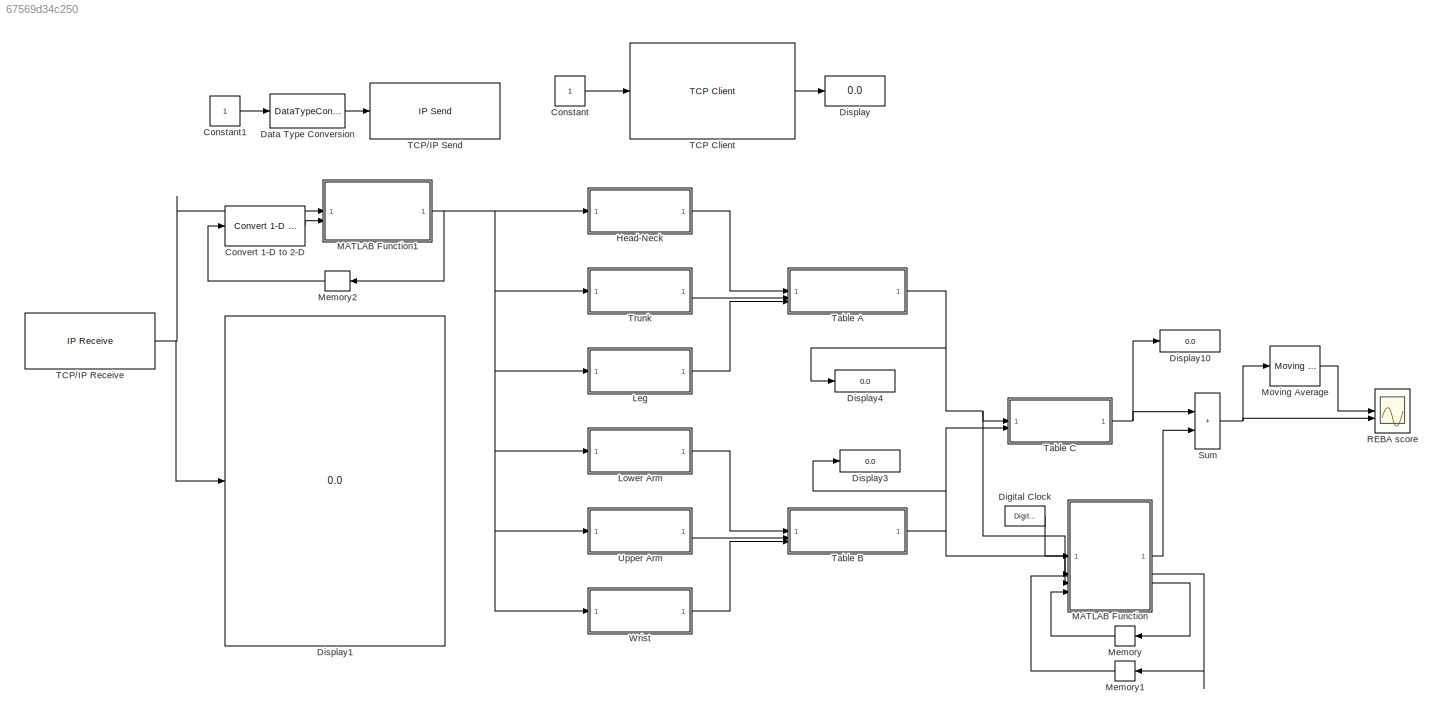
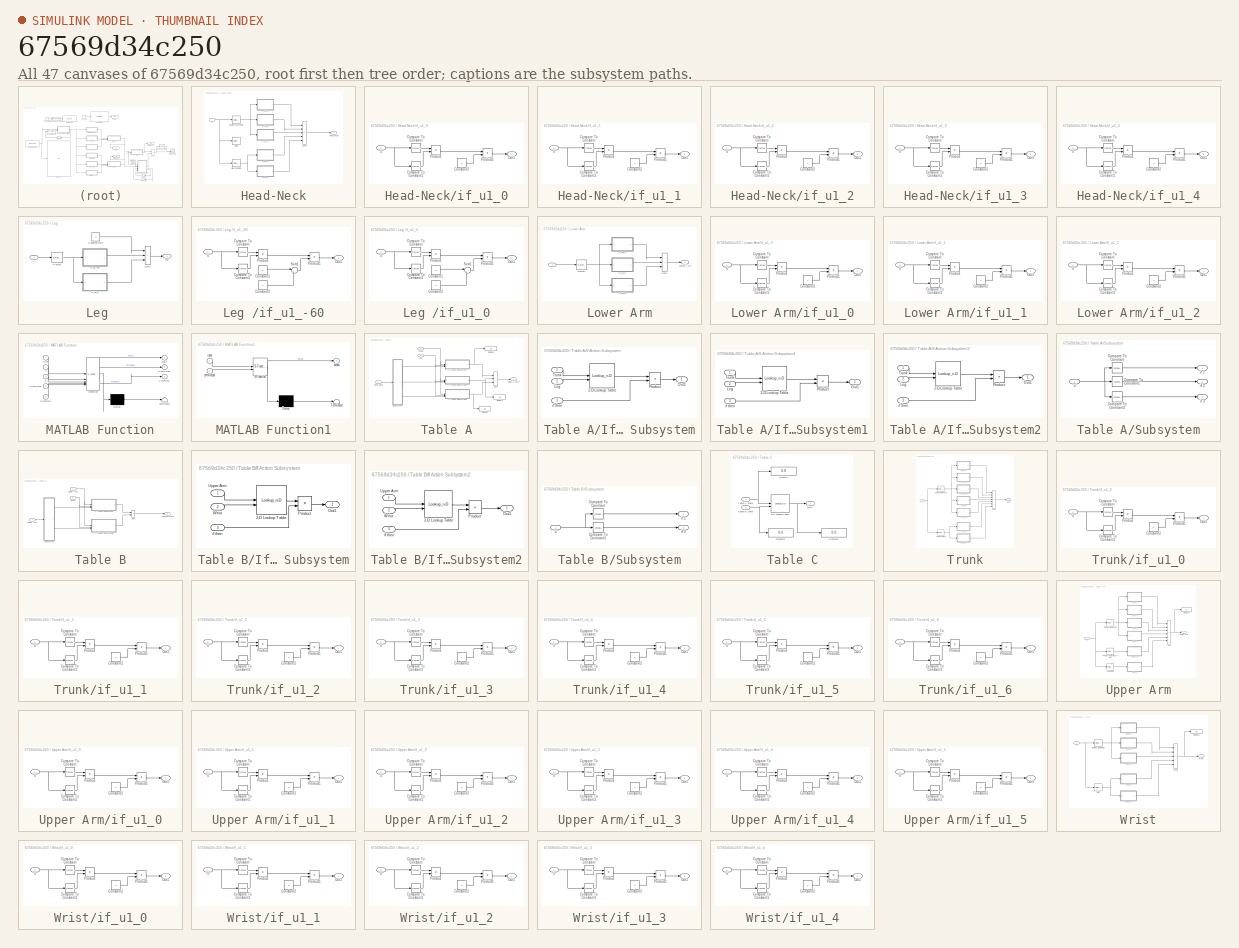
[diagram: thumbnail index - all 47 canvases of the model, root first then tree order]
MODEL slx_67569d34c250
KIND model
CONFIG AbsTol = auto
CONFIG EnableMultiTasking = off
CONFIG FixedStep = 1
CONFIG MaxStep = auto
CONFIG MinStep = auto
CONFIG RelTol = 1e-3
CONFIG SampleTimeConstraint = Unconstrained
CONFIG SolverName = FixedStepAuto
CONFIG StartTime = 0.0
CONFIG StopTime = 90
BLOCK [Constant] Constant
BLOCK [Constant] Constant1
BLOCK [Reference] Convert 1-D to 2-D  REF=dspsigattribs/Convert 1-D to 2-D
  LibrarySourceBlock = dsphdlsupportsigmgmt/Convert 1-D to 2-D
  SourceBlock = dspsigattribs/Convert 1-D to 2-D
  SourceType = Convert 1-D to 2-D
BLOCK [DataTypeConversion] Data Type Conversion
  OutDataTypeStr = uint8
  RndMeth = Floor
  SaturateOnIntegerOverflow = off
BLOCK [DigitalClock] Digital Clock
  Commented = on
BLOCK [Display] Display
  Decimation = 1
BLOCK [Display] Display1
  Decimation = 1
BLOCK [Display] Display10
  Decimation = 1
BLOCK [Display] Display3
  Decimation = 1
BLOCK [Display] Display4
  Decimation = 1
BLOCK [SubSystem] Head-Neck
  TreatAsAtomicUnit = on
BLOCK [Selector] Head-Neck/Flexion-Extension
  IndexOptions = Index vector (dialog),Index vector (dialog)
  Indices = 1,7
  InputPortWidth = 3
  NumberOfDimensions = 2
  OutputSizes = 1,1
BLOCK [Outport] Head-Neck/Head-Neck
BLOCK [Selector] Head-Neck/Side bending
  IndexOptions = Index vector (dialog),Index vector (dialog)
  Indices = 1,1
  InputPortWidth = 3
  NumberOfDimensions = 2
  OutputSizes = 1,1
BLOCK [Sum] Head-Neck/Sum1
  IconShape = rectangular
  Inputs = |+++++
BLOCK [Selector] Head-Neck/Twist
  Commented = on
  IndexOptions = Index vector (dialog),Index vector (dialog)
  Indices = 1,7
  InputPortWidth = 3
  NumberOfDimensions = 2
  OutputSizes = 1,1
BLOCK [SubSystem] Head-Neck/if_u1_0
BLOCK [Reference] Head-Neck/if_u1_0/Compare To Constant  REF=simulink/Logic and Bit
Operations/Compare
To Constant
  SourceBlock = simulink/Logic and Bit\nOperations/Compare\nTo Constant
  SourceType = Compare To Constant
BLOCK [Reference] Head-Neck/if_u1_0/Compare To Constant1  REF=simulink/Logic and Bit
Operations/Compare
To Constant
  SourceBlock = simulink/Logic and Bit\nOperations/Compare\nTo Constant
  SourceType = Compare To Constant
BLOCK [Constant] Head-Neck/if_u1_0/Constant2
  Value = c
BLOCK [Outport] Head-Neck/if_u1_0/Out1
BLOCK [Product] Head-Neck/if_u1_0/Product
BLOCK [Product] Head-Neck/if_u1_0/Product1
BLOCK [Inport] Head-Neck/if_u1_0/u
BLOCK [SubSystem] Head-Neck/if_u1_1
BLOCK [Reference] Head-Neck/if_u1_1/Compare To Constant  REF=simulink/Logic and Bit
Operations/Compare
To Constant
  SourceBlock = simulink/Logic and Bit\nOperations/Compare\nTo Constant
  SourceType = Compare To Constant
BLOCK [Reference] Head-Neck/if_u1_1/Compare To Constant1  REF=simulink/Logic and Bit
Operations/Compare
To Constant
  SourceBlock = simulink/Logic and Bit\nOperations/Compare\nTo Constant
  SourceType = Compare To Constant
BLOCK [Constant] Head-Neck/if_u1_1/Constant2
  Value = c
BLOCK [Outport] Head-Neck/if_u1_1/Out1
BLOCK [Product] Head-Neck/if_u1_1/Product
BLOCK [Product] Head-Neck/if_u1_1/Product1
BLOCK [Inport] Head-Neck/if_u1_1/u
BLOCK [SubSystem] Head-Neck/if_u1_2
BLOCK [Reference] Head-Neck/if_u1_2/Compare To Constant  REF=simulink/Logic and Bit
Operations/Compare
To Constant
  SourceBlock = simulink/Logic and Bit\nOperations/Compare\nTo Constant
  SourceType = Compare To Constant
BLOCK [Reference] Head-Neck/if_u1_2/Compare To Constant1  REF=simulink/Logic and Bit
Operations/Compare
To Constant
  SourceBlock = simulink/Logic and Bit\nOperations/Compare\nTo Constant
  SourceType = Compare To Constant
BLOCK [Constant] Head-Neck/if_u1_2/Constant2
  Value = c
BLOCK [Outport] Head-Neck/if_u1_2/Out1
BLOCK [Product] Head-Neck/if_u1_2/Product
BLOCK [Product] Head-Neck/if_u1_2/Product1
BLOCK [Inport] Head-Neck/if_u1_2/u
BLOCK [SubSystem] Head-Neck/if_u1_3
BLOCK [Reference] Head-Neck/if_u1_3/Compare To Constant  REF=simulink/Logic and Bit
Operations/Compare
To Constant
  SourceBlock = simulink/Logic and Bit\nOperations/Compare\nTo Constant
  SourceType = Compare To Constant
BLOCK [Reference] Head-Neck/if_u1_3/Compare To Constant1  REF=simulink/Logic and Bit
Operations/Compare
To Constant
  SourceBlock = simulink/Logic and Bit\nOperations/Compare\nTo Constant
  SourceType = Compare To Constant
BLOCK [Constant] Head-Neck/if_u1_3/Constant2
  Value = c
BLOCK [Outport] Head-Neck/if_u1_3/Out1
BLOCK [Product] Head-Neck/if_u1_3/Product
BLOCK [Product] Head-Neck/if_u1_3/Product1
BLOCK [Inport] Head-Neck/if_u1_3/u
BLOCK [SubSystem] Head-Neck/if_u1_4
BLOCK [Reference] Head-Neck/if_u1_4/Compare To Constant  REF=simulink/Logic and Bit
Operations/Compare
To Constant
  SourceBlock = simulink/Logic and Bit\nOperations/Compare\nTo Constant
  SourceType = Compare To Constant
BLOCK [Reference] Head-Neck/if_u1_4/Compare To Constant1  REF=simulink/Logic and Bit
Operations/Compare
To Constant
  SourceBlock = simulink/Logic and Bit\nOperations/Compare\nTo Constant
  SourceType = Compare To Constant
BLOCK [Constant] Head-Neck/if_u1_4/Constant2
  Value = c
BLOCK [Outport] Head-Neck/if_u1_4/Out1
BLOCK [Product] Head-Neck/if_u1_4/Product
BLOCK [Product] Head-Neck/if_u1_4/Product1
BLOCK [Inport] Head-Neck/if_u1_4/u
BLOCK [Inport] Head-Neck/y
BLOCK [SubSystem] Leg 
  TreatAsAtomicUnit = on
BLOCK [Selector] Leg /Flexion
  IndexOptions = Index vector (dialog),Index vector (dialog)
  Indices = 1,25
  InputPortWidth = 3
  NumberOfDimensions = 2
  OutputSizes = 1,1
BLOCK [Outport] Leg /Leg
BLOCK [Constant] Leg /Standing score
BLOCK [Sum] Leg /Sum1
  IconShape = rectangular
  Inputs = |+++
BLOCK [SubSystem] Leg /if_u1_-60
BLOCK [Reference] Leg /if_u1_-60/Compare To Constant  REF=simulink/Logic and Bit
Operations/Compare
To Constant
  SourceBlock = simulink/Logic and Bit\nOperations/Compare\nTo Constant
  SourceType = Compare To Constant
BLOCK [Reference] Leg /if_u1_-60/Compare To Constant1  REF=simulink/Logic and Bit
Operations/Compare
To Constant
  SourceBlock = simulink/Logic and Bit\nOperations/Compare\nTo Constant
  SourceType = Compare To Constant
BLOCK [Constant] Leg /if_u1_-60/Constant1
  Value = 0
BLOCK [Constant] Leg /if_u1_-60/Constant2
  Value = c
BLOCK [Outport] Leg /if_u1_-60/Out1
BLOCK [Product] Leg /if_u1_-60/Product
BLOCK [Product] Leg /if_u1_-60/Product1
BLOCK [Sum] Leg /if_u1_-60/Sum1
  Inputs = |++
BLOCK [Inport] Leg /if_u1_-60/u
BLOCK [SubSystem] Leg /if_u1_0
BLOCK [Reference] Leg /if_u1_0/Compare To Constant  REF=simulink/Logic and Bit
Operations/Compare
To Constant
  SourceBlock = simulink/Logic and Bit\nOperations/Compare\nTo Constant
  SourceType = Compare To Constant
BLOCK [Reference] Leg /if_u1_0/Compare To Constant1  REF=simulink/Logic and Bit
Operations/Compare
To Constant
  SourceBlock = simulink/Logic and Bit\nOperations/Compare\nTo Constant
  SourceType = Compare To Constant
BLOCK [Constant] Leg /if_u1_0/Constant1
  Value = 0
BLOCK [Constant] Leg /if_u1_0/Constant2
  Value = c
BLOCK [Outport] Leg /if_u1_0/Out1
BLOCK [Product] Leg /if_u1_0/Product
BLOCK [Product] Leg /if_u1_0/Product1
BLOCK [Sum] Leg /if_u1_0/Sum1
  Inputs = |++
BLOCK [Inport] Leg /if_u1_0/u
BLOCK [Inport] Leg /y
BLOCK [SubSystem] Lower Arm
  TreatAsAtomicUnit = on
BLOCK [Selector] Lower Arm/Flexion
  IndexOptions = Index vector (dialog),Index vector (dialog)
  Indices = 1,29
  InputPortWidth = 3
  NumberOfDimensions = 2
  OutputSizes = 1,1
BLOCK [Outport] Lower Arm/Lower Arm
BLOCK [Sum] Lower Arm/Sum1
  IconShape = rectangular
  Inputs = |+++
BLOCK [SubSystem] Lower Arm/if_u1_0
BLOCK [Reference] Lower Arm/if_u1_0/Compare To Constant  REF=simulink/Logic and Bit
Operations/Compare
To Constant
  SourceBlock = simulink/Logic and Bit\nOperations/Compare\nTo Constant
  SourceType = Compare To Constant
BLOCK [Reference] Lower Arm/if_u1_0/Compare To Constant1  REF=simulink/Logic and Bit
Operations/Compare
To Constant
  SourceBlock = simulink/Logic and Bit\nOperations/Compare\nTo Constant
  SourceType = Compare To Constant
BLOCK [Constant] Lower Arm/if_u1_0/Constant2
  Value = c
BLOCK [Outport] Lower Arm/if_u1_0/Out1
BLOCK [Product] Lower Arm/if_u1_0/Product
BLOCK [Product] Lower Arm/if_u1_0/Product1
BLOCK [Inport] Lower Arm/if_u1_0/u
BLOCK [SubSystem] Lower Arm/if_u1_1
BLOCK [Reference] Lower Arm/if_u1_1/Compare To Constant  REF=simulink/Logic and Bit
Operations/Compare
To Constant
  SourceBlock = simulink/Logic and Bit\nOperations/Compare\nTo Constant
  SourceType = Compare To Constant
BLOCK [Reference] Lower Arm/if_u1_1/Compare To Constant1  REF=simulink/Logic and Bit
Operations/Compare
To Constant
  SourceBlock = simulink/Logic and Bit\nOperations/Compare\nTo Constant
  SourceType = Compare To Constant
BLOCK [Constant] Lower Arm/if_u1_1/Constant2
  Value = c
BLOCK [Outport] Lower Arm/if_u1_1/Out1
BLOCK [Product] Lower Arm/if_u1_1/Product
BLOCK [Product] Lower Arm/if_u1_1/Product1
BLOCK [Inport] Lower Arm/if_u1_1/u
BLOCK [SubSystem] Lower Arm/if_u1_2
BLOCK [Reference] Lower Arm/if_u1_2/Compare To Constant  REF=simulink/Logic and Bit
Operations/Compare
To Constant
  SourceBlock = simulink/Logic and Bit\nOperations/Compare\nTo Constant
  SourceType = Compare To Constant
BLOCK [Reference] Lower Arm/if_u1_2/Compare To Constant1  REF=simulink/Logic and Bit
Operations/Compare
To Constant
  SourceBlock = simulink/Logic and Bit\nOperations/Compare\nTo Constant
  SourceType = Compare To Constant
BLOCK [Constant] Lower Arm/if_u1_2/Constant2
  Value = c
BLOCK [Outport] Lower Arm/if_u1_2/Out1
BLOCK [Product] Lower Arm/if_u1_2/Product
BLOCK [Product] Lower Arm/if_u1_2/Product1
BLOCK [Inport] Lower Arm/if_u1_2/u
BLOCK [Inport] Lower Arm/y
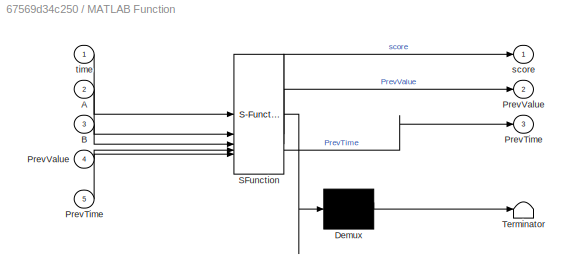
BLOCK [SubSystem] MATLAB Function
  Commented = on
  ErrorFcn = Stateflow.Translate.translate
  LibrarySourceBlock = simulink/User-Defined\nFunctions/MATLAB Function
  PermitHierarchicalResolution = ExplicitOnly
  SFBlockType = MATLAB Function
  TreatAsAtomicUnit = on
BLOCK [Demux] MATLAB Function/ Demux 
  Outputs = 1
BLOCK [S-Function] MATLAB Function/ SFunction 
  EnableBusSupport = on
  FunctionName = sf_sfun
  PortCounts = [5 4]
  SFcnIsStateOwnerBlock = off
  SFunctionDeploymentMode = off
  Tag = Stateflow S-Function 2
BLOCK [Terminator] MATLAB Function/ Terminator 
BLOCK [Inport] MATLAB Function/A
  Port = 2
BLOCK [Inport] MATLAB Function/B
  Port = 3
BLOCK [Outport] MATLAB Function/PrevTime
  Port = 3
BLOCK [Inport] MATLAB Function/PrevTime 
  Port = 5
BLOCK [Outport] MATLAB Function/PrevValue
  Port = 2
BLOCK [Inport] MATLAB Function/PrevValue 
  Port = 4
BLOCK [Outport] MATLAB Function/score
BLOCK [Inport] MATLAB Function/time
BLOCK [SubSystem] MATLAB Function1
  ErrorFcn = Stateflow.Translate.translate
  LibrarySourceBlock = simulink/User-Defined\nFunctions/MATLAB Function
  PermitHierarchicalResolution = ExplicitOnly
  SFBlockType = MATLAB Function
  TreatAsAtomicUnit = on
BLOCK [Demux] MATLAB Function1/ Demux 
  Outputs = 1
BLOCK [S-Function] MATLAB Function1/ SFunction 
  EnableBusSupport = on
  FunctionName = sf_sfun
  PortCounts = [2 2]
  SFcnIsStateOwnerBlock = off
  SFunctionDeploymentMode = off
  Tag = Stateflow S-Function 1
BLOCK [Terminator] MATLAB Function1/ Terminator 
BLOCK [Inport] MATLAB Function1/input
BLOCK [Outport] MATLAB Function1/output
BLOCK [Inport] MATLAB Function1/prevOutput
  Port = 2
BLOCK [Memory] Memory
  Commented = on
  NameLocation = top
BLOCK [Memory] Memory1
  Commented = on
  NameLocation = top
BLOCK [Memory] Memory2
  InitialCondition = zeros(1,54)
  NameLocation = top
BLOCK [Reference] Moving Average  REF=dspstat3/Moving
Average
  SourceBlock = dspstat3/Moving\nAverage
  SourceType = dsp.simulink.MovingAverage
BLOCK [Scope] REBA score
  Floating = off
  NumInputPorts = 2
  ScopeSpecificationString = Simulink.scopes.TimeScopeBlockCfg('CurrentConfiguration', extmgr.ConfigurationSet(extmgr.Configuration('Core','General UI',true,'FigureColor',[0 0 0]),extmgr.Configuration('Core','Source UI',true),extmgr.Configuration('Sources','WiredSimulink',true),extmgr.Configuration('Visuals','Time Domain',true,'PlotType','Line','SerializedDisplays',{struct('MinYLimReal','-1','MaxYLimReal','11','YLabelReal','R...<+1662ch>
BLOCK [Sum] Sum
  IconShape = rectangular
  Inputs = |++
BLOCK [Reference] TCP Client  REF=slrealtimeiplib/TCP Client
  Priority = -1
  SourceBlock = slrealtimeiplib/TCP Client
  SourceType = slrealtimetcpclient
BLOCK [Reference] TCP//IP Receive  REF=instrumentlib/TCP//IP Receive
  SourceBlock = instrumentlib/TCP//IP Receive
  SourceType = instrument.system.TCPIPReceive
BLOCK [Reference] TCP//IP Send  REF=instrumentlib/TCP//IP Send
  SourceBlock = instrumentlib/TCP//IP Send
  SourceType = instrument.system.TCPIPSend
BLOCK [SubSystem] Table A
BLOCK [Display] Table A/Display1
  Decimation = 1
BLOCK [Display] Table A/Display2
  Decimation = 1
BLOCK [Display] Table A/Display3
  Decimation = 1
BLOCK [Inport] Table A/Head-Neck
BLOCK [SubSystem] Table A/If Action Subsystem
  TreatAsAtomicUnit = on
BLOCK [Lookup_n-D] Table A/If Action Subsystem/2-D Lookup Table
  BreakpointsForDimension1 = [1 2 3 4 5]
  BreakpointsForDimension2 = [1 2 3 4]
  InputPortMap = u0,u1
  InternalRulePriority = Speed
  RndMeth = Simplest
  Table = [1 2 3 4; 2 3 4 5; 2 4 5 6; 3 5 6 7; 4 6 7 8]
BLOCK [Inport] Table A/If Action Subsystem/Leg
  Port = 2
BLOCK [Outport] Table A/If Action Subsystem/Out1
BLOCK [Product] Table A/If Action Subsystem/Product
BLOCK [Inport] Table A/If Action Subsystem/Trunk
BLOCK [Inport] Table A/If Action Subsystem/if then
  Port = 3
BLOCK [SubSystem] Table A/If Action Subsystem1
  TreatAsAtomicUnit = on
BLOCK [Lookup_n-D] Table A/If Action Subsystem1/2-D Lookup Table
  BreakpointsForDimension1 = [1 2 3 4 5]
  BreakpointsForDimension2 = [1 2 3 4]
  InputPortMap = u0,u1
  InternalRulePriority = Speed
  RndMeth = Simplest
  Table = [3 3 5 6; 4 5 6 7; 5 6 7 8; 6 7 8 9; 7 8 9 9]
BLOCK [Inport] Table A/If Action Subsystem1/Leg
  Port = 2
BLOCK [Outport] Table A/If Action Subsystem1/Out1
BLOCK [Product] Table A/If Action Subsystem1/Product
BLOCK [Inport] Table A/If Action Subsystem1/Trunk
BLOCK [Inport] Table A/If Action Subsystem1/if then
  Port = 3
BLOCK [SubSystem] Table A/If Action Subsystem2
  TreatAsAtomicUnit = on
BLOCK [Lookup_n-D] Table A/If Action Subsystem2/2-D Lookup Table
  BreakpointsForDimension1 = [1 2 3 4 5]
  BreakpointsForDimension2 = [1 2 3 4]
  InputPortMap = u0,u1
  InternalRulePriority = Speed
  OutMin = [0]
  RndMeth = Simplest
  Table = [1 2 3 4; 3 4 5 6; 4 5 6 7; 5 6 7 8; 6 7 8 9]
BLOCK [Inport] Table A/If Action Subsystem2/Leg
  Port = 2
BLOCK [Outport] Table A/If Action Subsystem2/Out1
BLOCK [Product] Table A/If Action Subsystem2/Product
BLOCK [Inport] Table A/If Action Subsystem2/Trunk
BLOCK [Inport] Table A/If Action Subsystem2/if then
  Port = 3
BLOCK [Inport] Table A/Leg
  Port = 3
BLOCK [SubSystem] Table A/Subsystem
BLOCK [Reference] Table A/Subsystem/Compare To Constant  REF=simulink/Logic and Bit
Operations/Compare
To Constant
  SourceBlock = simulink/Logic and Bit\nOperations/Compare\nTo Constant
  SourceType = Compare To Constant
BLOCK [Reference] Table A/Subsystem/Compare To Constant1  REF=simulink/Logic and Bit
Operations/Compare
To Constant
  SourceBlock = simulink/Logic and Bit\nOperations/Compare\nTo Constant
  SourceType = Compare To Constant
BLOCK [Reference] Table A/Subsystem/Compare To Constant2  REF=simulink/Logic and Bit
Operations/Compare
To Constant
  SourceBlock = simulink/Logic and Bit\nOperations/Compare\nTo Constant
  SourceType = Compare To Constant
BLOCK [Outport] Table A/Subsystem/if 1
BLOCK [Outport] Table A/Subsystem/if 2
  Port = 2
BLOCK [Outport] Table A/Subsystem/if 3
  Port = 3
BLOCK [Inport] Table A/Subsystem/u
BLOCK [Sum] Table A/Sum
  IconShape = rectangular
  Inputs = |+++
BLOCK [Outport] Table A/Table A score
BLOCK [Inport] Table A/Trunk
  Port = 2
BLOCK [SubSystem] Table B
BLOCK [SubSystem] Table B/If Action Subsystem
  TreatAsAtomicUnit = on
BLOCK [Lookup_n-D] Table B/If Action Subsystem/2-D Lookup Table
  BreakpointsForDimension1 = [1 2 3 4 5 6]
  BreakpointsForDimension2 = [1 2 3]
  InputPortMap = u0,u1
  InternalRulePriority = Speed
  RndMeth = Simplest
  Table = [1 2 2; 1 2 3; 3 4 5; 4 5 5; 6 7 8; 7 8 8]
BLOCK [Outport] Table B/If Action Subsystem/Out1
BLOCK [Product] Table B/If Action Subsystem/Product
BLOCK [Inport] Table B/If Action Subsystem/Upper Arm
BLOCK [Inport] Table B/If Action Subsystem/Wrist
  Port = 2
BLOCK [Inport] Table B/If Action Subsystem/if then
  Port = 3
BLOCK [SubSystem] Table B/If Action Subsystem2
  TreatAsAtomicUnit = on
BLOCK [Lookup_n-D] Table B/If Action Subsystem2/2-D Lookup Table
  BreakpointsForDimension1 = [1 2 3 4 5 6]
  BreakpointsForDimension2 = [1 2 3]
  InputPortMap = u0,u1
  InternalRulePriority = Speed
  RndMeth = Simplest
  Table = [1 2 3; 2 3 4; 4 5 5; 5 6 7; 7 8 8; 8 9 9]
BLOCK [Outport] Table B/If Action Subsystem2/Out1
BLOCK [Product] Table B/If Action Subsystem2/Product
BLOCK [Inport] Table B/If Action Subsystem2/Upper Arm
BLOCK [Inport] Table B/If Action Subsystem2/Wrist
  Port = 2
BLOCK [Inport] Table B/If Action Subsystem2/if then
  Port = 3
BLOCK [Inport] Table B/Lower Arm
BLOCK [SubSystem] Table B/Subsystem
BLOCK [Reference] Table B/Subsystem/Compare To Constant  REF=simulink/Logic and Bit
Operations/Compare
To Constant
  SourceBlock = simulink/Logic and Bit\nOperations/Compare\nTo Constant
  SourceType = Compare To Constant
BLOCK [Reference] Table B/Subsystem/Compare To Constant1  REF=simulink/Logic and Bit
Operations/Compare
To Constant
  SourceBlock = simulink/Logic and Bit\nOperations/Compare\nTo Constant
  SourceType = Compare To Constant
BLOCK [Outport] Table B/Subsystem/if 1
BLOCK [Outport] Table B/Subsystem/if 2
  Port = 2
BLOCK [Inport] Table B/Subsystem/u
BLOCK [Sum] Table B/Sum
  IconShape = rectangular
BLOCK [Outport] Table B/Table B score
BLOCK [Inport] Table B/Upper Arm
  Port = 2
BLOCK [Inport] Table B/Wrist
  Port = 3
BLOCK [SubSystem] Table C
BLOCK [Lookup_n-D] Table C/2-D Lookup Table
  BreakpointsForDimension1 = [0:12]
  BreakpointsForDimension2 = [0:12]
  InputPortMap = u0,u1
  OutDataTypeStr = Inherit: Inherit from 'Table data'
  RndMeth = Simplest
  Table = [1 1 1 1 1 1 1 1 1 1 1 1 1; 1 1 1 1 2 3 3 4 5 6 7 7 7; 1 1 2 2 3 4 4 5 6 6 7 7 8; 1 2 3 3 3 4 5 6 7 7 8 8 8; 1 3 4 4 4 5 6 7 8 8 9 9 9; 1 4 4 4 5 6 7 8 8 9 9 9 9; 1 6 6 6 7 8 8 9 9 10 10 10 10; 1 7 7 7 8 9 9 9 10 10 11 11 11; 1 8 8 8 9 10 10 10 10 10 11 11 11; 1 9 9 9 10 10 10 11 11 11 12 12 12; 1 10 10 10 11 11 11 11 12 12 12 12 12; 1 11 11 11 11 12 12 12 12 12 12 12 12; 1 12 12 12 12 12 12 12 12...<+13ch>
BLOCK [Display] Table C/Display
  Decimation = 1
BLOCK [Display] Table C/Display1
  Decimation = 1
BLOCK [Display] Table C/Display2
  Decimation = 1
BLOCK [Outport] Table C/Out1
BLOCK [Inport] Table C/Table A score
BLOCK [Inport] Table C/Table B score
  Port = 2
BLOCK [SubSystem] Trunk
  TreatAsAtomicUnit = on
BLOCK [Selector] Trunk/Flexion-Extension
  IndexOptions = Index vector (dialog),Index vector (dialog)
  Indices = 1,16
  InputPortWidth = 3
  NumberOfDimensions = 2
  OutputSizes = 1,1
BLOCK [Selector] Trunk/Side bending
  IndexOptions = Index vector (dialog),Index vector (dialog)
  Indices = 1,17
  InputPortWidth = 3
  NumberOfDimensions = 2
  OutputSizes = 1,1
BLOCK [Sum] Trunk/Sum1
  IconShape = rectangular
  Inputs = |+++++++
BLOCK [Outport] Trunk/Trunk
BLOCK [SubSystem] Trunk/if_u1_0
BLOCK [Reference] Trunk/if_u1_0/Compare To Constant  REF=simulink/Logic and Bit
Operations/Compare
To Constant
  SourceBlock = simulink/Logic and Bit\nOperations/Compare\nTo Constant
  SourceType = Compare To Constant
BLOCK [Reference] Trunk/if_u1_0/Compare To Constant1  REF=simulink/Logic and Bit
Operations/Compare
To Constant
  SourceBlock = simulink/Logic and Bit\nOperations/Compare\nTo Constant
  SourceType = Compare To Constant
BLOCK [Constant] Trunk/if_u1_0/Constant2
  Value = c
BLOCK [Outport] Trunk/if_u1_0/Out1
BLOCK [Product] Trunk/if_u1_0/Product
BLOCK [Product] Trunk/if_u1_0/Product1
BLOCK [Inport] Trunk/if_u1_0/u
BLOCK [SubSystem] Trunk/if_u1_1
BLOCK [Reference] Trunk/if_u1_1/Compare To Constant  REF=simulink/Logic and Bit
Operations/Compare
To Constant
  SourceBlock = simulink/Logic and Bit\nOperations/Compare\nTo Constant
  SourceType = Compare To Constant
BLOCK [Reference] Trunk/if_u1_1/Compare To Constant1  REF=simulink/Logic and Bit
Operations/Compare
To Constant
  SourceBlock = simulink/Logic and Bit\nOperations/Compare\nTo Constant
  SourceType = Compare To Constant
BLOCK [Constant] Trunk/if_u1_1/Constant2
  Value = c
BLOCK [Outport] Trunk/if_u1_1/Out1
BLOCK [Product] Trunk/if_u1_1/Product
BLOCK [Product] Trunk/if_u1_1/Product1
BLOCK [Inport] Trunk/if_u1_1/u
BLOCK [SubSystem] Trunk/if_u1_2
BLOCK [Reference] Trunk/if_u1_2/Compare To Constant  REF=simulink/Logic and Bit
Operations/Compare
To Constant
  SourceBlock = simulink/Logic and Bit\nOperations/Compare\nTo Constant
  SourceType = Compare To Constant
BLOCK [Reference] Trunk/if_u1_2/Compare To Constant1  REF=simulink/Logic and Bit
Operations/Compare
To Constant
  SourceBlock = simulink/Logic and Bit\nOperations/Compare\nTo Constant
  SourceType = Compare To Constant
BLOCK [Constant] Trunk/if_u1_2/Constant2
  Value = c
BLOCK [Outport] Trunk/if_u1_2/Out1
BLOCK [Product] Trunk/if_u1_2/Product
BLOCK [Product] Trunk/if_u1_2/Product1
BLOCK [Inport] Trunk/if_u1_2/u
BLOCK [SubSystem] Trunk/if_u1_3
BLOCK [Reference] Trunk/if_u1_3/Compare To Constant  REF=simulink/Logic and Bit
Operations/Compare
To Constant
  SourceBlock = simulink/Logic and Bit\nOperations/Compare\nTo Constant
  SourceType = Compare To Constant
BLOCK [Reference] Trunk/if_u1_3/Compare To Constant1  REF=simulink/Logic and Bit
Operations/Compare
To Constant
  SourceBlock = simulink/Logic and Bit\nOperations/Compare\nTo Constant
  SourceType = Compare To Constant
BLOCK [Constant] Trunk/if_u1_3/Constant2
  Value = c
BLOCK [Outport] Trunk/if_u1_3/Out1
BLOCK [Product] Trunk/if_u1_3/Product
BLOCK [Product] Trunk/if_u1_3/Product1
BLOCK [Inport] Trunk/if_u1_3/u
BLOCK [SubSystem] Trunk/if_u1_4
BLOCK [Reference] Trunk/if_u1_4/Compare To Constant  REF=simulink/Logic and Bit
Operations/Compare
To Constant
  SourceBlock = simulink/Logic and Bit\nOperations/Compare\nTo Constant
  SourceType = Compare To Constant
BLOCK [Reference] Trunk/if_u1_4/Compare To Constant1  REF=simulink/Logic and Bit
Operations/Compare
To Constant
  SourceBlock = simulink/Logic and Bit\nOperations/Compare\nTo Constant
  SourceType = Compare To Constant
BLOCK [Constant] Trunk/if_u1_4/Constant2
  Value = c
BLOCK [Outport] Trunk/if_u1_4/Out1
BLOCK [Product] Trunk/if_u1_4/Product
BLOCK [Product] Trunk/if_u1_4/Product1
BLOCK [Inport] Trunk/if_u1_4/u
BLOCK [SubSystem] Trunk/if_u1_5
BLOCK [Reference] Trunk/if_u1_5/Compare To Constant  REF=simulink/Logic and Bit
Operations/Compare
To Constant
  SourceBlock = simulink/Logic and Bit\nOperations/Compare\nTo Constant
  SourceType = Compare To Constant
BLOCK [Reference] Trunk/if_u1_5/Compare To Constant1  REF=simulink/Logic and Bit
Operations/Compare
To Constant
  SourceBlock = simulink/Logic and Bit\nOperations/Compare\nTo Constant
  SourceType = Compare To Constant
BLOCK [Constant] Trunk/if_u1_5/Constant2
  Value = c
BLOCK [Outport] Trunk/if_u1_5/Out1
BLOCK [Product] Trunk/if_u1_5/Product
BLOCK [Product] Trunk/if_u1_5/Product1
BLOCK [Inport] Trunk/if_u1_5/u
BLOCK [SubSystem] Trunk/if_u1_6
BLOCK [Reference] Trunk/if_u1_6/Compare To Constant  REF=simulink/Logic and Bit
Operations/Compare
To Constant
  SourceBlock = simulink/Logic and Bit\nOperations/Compare\nTo Constant
  SourceType = Compare To Constant
BLOCK [Reference] Trunk/if_u1_6/Compare To Constant1  REF=simulink/Logic and Bit
Operations/Compare
To Constant
  SourceBlock = simulink/Logic and Bit\nOperations/Compare\nTo Constant
  SourceType = Compare To Constant
BLOCK [Constant] Trunk/if_u1_6/Constant2
  Value = c
BLOCK [Outport] Trunk/if_u1_6/Out1
BLOCK [Product] Trunk/if_u1_6/Product
BLOCK [Product] Trunk/if_u1_6/Product1
BLOCK [Inport] Trunk/if_u1_6/u
BLOCK [Inport] Trunk/y
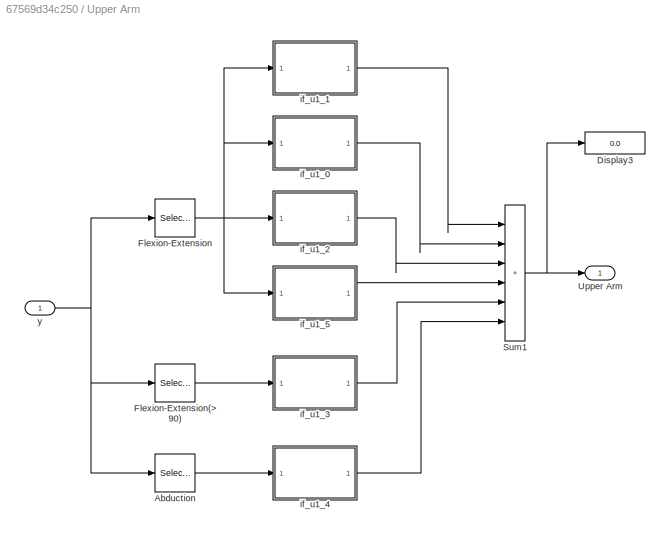
BLOCK [SubSystem] Upper Arm
  TreatAsAtomicUnit = on
BLOCK [Selector] Upper Arm/Abduction
  IndexOptions = Index vector (dialog),Index vector (dialog)
  Indices = 1,39
  InputPortWidth = 3
  NumberOfDimensions = 2
  OutputSizes = 1,1
BLOCK [Display] Upper Arm/Display3
  Decimation = 1
BLOCK [Selector] Upper Arm/Flexion-Extension
  IndexOptions = Index vector (dialog),Index vector (dialog)
  Indices = 1,37
  InputPortWidth = 3
  NumberOfDimensions = 2
  OutputSizes = 1,1
BLOCK [Selector] Upper Arm/Flexion-Extension(>90)
  IndexOptions = Index vector (dialog),Index vector (dialog)
  Indices = 1,38
  InputPortWidth = 3
  NumberOfDimensions = 2
  OutputSizes = 1,1
BLOCK [Sum] Upper Arm/Sum1
  IconShape = rectangular
  Inputs = |++++++
BLOCK [Outport] Upper Arm/Upper Arm
BLOCK [SubSystem] Upper Arm/if_u1_0
BLOCK [Reference] Upper Arm/if_u1_0/Compare To Constant  REF=simulink/Logic and Bit
Operations/Compare
To Constant
  SourceBlock = simulink/Logic and Bit\nOperations/Compare\nTo Constant
  SourceType = Compare To Constant
BLOCK [Reference] Upper Arm/if_u1_0/Compare To Constant1  REF=simulink/Logic and Bit
Operations/Compare
To Constant
  SourceBlock = simulink/Logic and Bit\nOperations/Compare\nTo Constant
  SourceType = Compare To Constant
BLOCK [Constant] Upper Arm/if_u1_0/Constant2
  Value = c
BLOCK [Outport] Upper Arm/if_u1_0/Out1
BLOCK [Product] Upper Arm/if_u1_0/Product
BLOCK [Product] Upper Arm/if_u1_0/Product1
BLOCK [Inport] Upper Arm/if_u1_0/u
BLOCK [SubSystem] Upper Arm/if_u1_1
BLOCK [Reference] Upper Arm/if_u1_1/Compare To Constant  REF=simulink/Logic and Bit
Operations/Compare
To Constant
  SourceBlock = simulink/Logic and Bit\nOperations/Compare\nTo Constant
  SourceType = Compare To Constant
BLOCK [Reference] Upper Arm/if_u1_1/Compare To Constant1  REF=simulink/Logic and Bit
Operations/Compare
To Constant
  SourceBlock = simulink/Logic and Bit\nOperations/Compare\nTo Constant
  SourceType = Compare To Constant
BLOCK [Constant] Upper Arm/if_u1_1/Constant2
  Value = c
BLOCK [Outport] Upper Arm/if_u1_1/Out1
BLOCK [Product] Upper Arm/if_u1_1/Product
BLOCK [Product] Upper Arm/if_u1_1/Product1
BLOCK [Inport] Upper Arm/if_u1_1/u
BLOCK [SubSystem] Upper Arm/if_u1_2
BLOCK [Reference] Upper Arm/if_u1_2/Compare To Constant  REF=simulink/Logic and Bit
Operations/Compare
To Constant
  SourceBlock = simulink/Logic and Bit\nOperations/Compare\nTo Constant
  SourceType = Compare To Constant
BLOCK [Reference] Upper Arm/if_u1_2/Compare To Constant1  REF=simulink/Logic and Bit
Operations/Compare
To Constant
  SourceBlock = simulink/Logic and Bit\nOperations/Compare\nTo Constant
  SourceType = Compare To Constant
BLOCK [Constant] Upper Arm/if_u1_2/Constant2
  Value = c
BLOCK [Outport] Upper Arm/if_u1_2/Out1
BLOCK [Product] Upper Arm/if_u1_2/Product
BLOCK [Product] Upper Arm/if_u1_2/Product1
BLOCK [Inport] Upper Arm/if_u1_2/u
BLOCK [SubSystem] Upper Arm/if_u1_3
BLOCK [Reference] Upper Arm/if_u1_3/Compare To Constant  REF=simulink/Logic and Bit
Operations/Compare
To Constant
  SourceBlock = simulink/Logic and Bit\nOperations/Compare\nTo Constant
  SourceType = Compare To Constant
BLOCK [Reference] Upper Arm/if_u1_3/Compare To Constant1  REF=simulink/Logic and Bit
Operations/Compare
To Constant
  SourceBlock = simulink/Logic and Bit\nOperations/Compare\nTo Constant
  SourceType = Compare To Constant
BLOCK [Constant] Upper Arm/if_u1_3/Constant2
  Value = c
BLOCK [Outport] Upper Arm/if_u1_3/Out1
BLOCK [Product] Upper Arm/if_u1_3/Product
BLOCK [Product] Upper Arm/if_u1_3/Product1
BLOCK [Inport] Upper Arm/if_u1_3/u
BLOCK [SubSystem] Upper Arm/if_u1_4
BLOCK [Reference] Upper Arm/if_u1_4/Compare To Constant  REF=simulink/Logic and Bit
Operations/Compare
To Constant
  SourceBlock = simulink/Logic and Bit\nOperations/Compare\nTo Constant
  SourceType = Compare To Constant
BLOCK [Reference] Upper Arm/if_u1_4/Compare To Constant1  REF=simulink/Logic and Bit
Operations/Compare
To Constant
  SourceBlock = simulink/Logic and Bit\nOperations/Compare\nTo Constant
  SourceType = Compare To Constant
BLOCK [Constant] Upper Arm/if_u1_4/Constant2
  Value = c
BLOCK [Outport] Upper Arm/if_u1_4/Out1
BLOCK [Product] Upper Arm/if_u1_4/Product
BLOCK [Product] Upper Arm/if_u1_4/Product1
BLOCK [Inport] Upper Arm/if_u1_4/u
BLOCK [SubSystem] Upper Arm/if_u1_5
BLOCK [Reference] Upper Arm/if_u1_5/Compare To Constant  REF=simulink/Logic and Bit
Operations/Compare
To Constant
  SourceBlock = simulink/Logic and Bit\nOperations/Compare\nTo Constant
  SourceType = Compare To Constant
BLOCK [Reference] Upper Arm/if_u1_5/Compare To Constant1  REF=simulink/Logic and Bit
Operations/Compare
To Constant
  SourceBlock = simulink/Logic and Bit\nOperations/Compare\nTo Constant
  SourceType = Compare To Constant
BLOCK [Constant] Upper Arm/if_u1_5/Constant2
  Value = c
BLOCK [Outport] Upper Arm/if_u1_5/Out1
BLOCK [Product] Upper Arm/if_u1_5/Product
BLOCK [Product] Upper Arm/if_u1_5/Product1
BLOCK [Inport] Upper Arm/if_u1_5/u
BLOCK [Inport] Upper Arm/y
BLOCK [SubSystem] Wrist
  TreatAsAtomicUnit = on
BLOCK [Display] Wrist/Display3
  Decimation = 1
BLOCK [Selector] Wrist/Flexion-Extension
  IndexOptions = Index vector (dialog),Index vector (dialog)
  Indices = 1,47
  InputPortWidth = 3
  NumberOfDimensions = 2
  OutputSizes = 1,1
BLOCK [Sum] Wrist/Sum1
  IconShape = rectangular
  Inputs = |+++++
BLOCK [Selector] Wrist/Twist
  IndexOptions = Index vector (dialog),Index vector (dialog)
  Indices = 1,53
  InputPortWidth = 3
  NumberOfDimensions = 2
  OutputSizes = 1,1
BLOCK [Outport] Wrist/Wrist
BLOCK [SubSystem] Wrist/if_u1_0
BLOCK [Reference] Wrist/if_u1_0/Compare To Constant  REF=simulink/Logic and Bit
Operations/Compare
To Constant
  SourceBlock = simulink/Logic and Bit\nOperations/Compare\nTo Constant
  SourceType = Compare To Constant
BLOCK [Reference] Wrist/if_u1_0/Compare To Constant1  REF=simulink/Logic and Bit
Operations/Compare
To Constant
  SourceBlock = simulink/Logic and Bit\nOperations/Compare\nTo Constant
  SourceType = Compare To Constant
BLOCK [Constant] Wrist/if_u1_0/Constant2
  Value = c
BLOCK [Outport] Wrist/if_u1_0/Out1
BLOCK [Product] Wrist/if_u1_0/Product
BLOCK [Product] Wrist/if_u1_0/Product1
BLOCK [Inport] Wrist/if_u1_0/u
BLOCK [SubSystem] Wrist/if_u1_1
BLOCK [Reference] Wrist/if_u1_1/Compare To Constant  REF=simulink/Logic and Bit
Operations/Compare
To Constant
  SourceBlock = simulink/Logic and Bit\nOperations/Compare\nTo Constant
  SourceType = Compare To Constant
BLOCK [Reference] Wrist/if_u1_1/Compare To Constant1  REF=simulink/Logic and Bit
Operations/Compare
To Constant
  SourceBlock = simulink/Logic and Bit\nOperations/Compare\nTo Constant
  SourceType = Compare To Constant
BLOCK [Constant] Wrist/if_u1_1/Constant2
  Value = c
BLOCK [Outport] Wrist/if_u1_1/Out1
BLOCK [Product] Wrist/if_u1_1/Product
BLOCK [Product] Wrist/if_u1_1/Product1
BLOCK [Inport] Wrist/if_u1_1/u
BLOCK [SubSystem] Wrist/if_u1_2
BLOCK [Reference] Wrist/if_u1_2/Compare To Constant  REF=simulink/Logic and Bit
Operations/Compare
To Constant
  SourceBlock = simulink/Logic and Bit\nOperations/Compare\nTo Constant
  SourceType = Compare To Constant
BLOCK [Reference] Wrist/if_u1_2/Compare To Constant1  REF=simulink/Logic and Bit
Operations/Compare
To Constant
  SourceBlock = simulink/Logic and Bit\nOperations/Compare\nTo Constant
  SourceType = Compare To Constant
BLOCK [Constant] Wrist/if_u1_2/Constant2
  Value = c
BLOCK [Outport] Wrist/if_u1_2/Out1
BLOCK [Product] Wrist/if_u1_2/Product
BLOCK [Product] Wrist/if_u1_2/Product1
BLOCK [Inport] Wrist/if_u1_2/u
BLOCK [SubSystem] Wrist/if_u1_3
BLOCK [Reference] Wrist/if_u1_3/Compare To Constant  REF=simulink/Logic and Bit
Operations/Compare
To Constant
  SourceBlock = simulink/Logic and Bit\nOperations/Compare\nTo Constant
  SourceType = Compare To Constant
BLOCK [Reference] Wrist/if_u1_3/Compare To Constant1  REF=simulink/Logic and Bit
Operations/Compare
To Constant
  SourceBlock = simulink/Logic and Bit\nOperations/Compare\nTo Constant
  SourceType = Compare To Constant
BLOCK [Constant] Wrist/if_u1_3/Constant2
  Value = c
BLOCK [Outport] Wrist/if_u1_3/Out1
BLOCK [Product] Wrist/if_u1_3/Product
BLOCK [Product] Wrist/if_u1_3/Product1
BLOCK [Inport] Wrist/if_u1_3/u
BLOCK [SubSystem] Wrist/if_u1_4
BLOCK [Reference] Wrist/if_u1_4/Compare To Constant  REF=simulink/Logic and Bit
Operations/Compare
To Constant
  SourceBlock = simulink/Logic and Bit\nOperations/Compare\nTo Constant
  SourceType = Compare To Constant
BLOCK [Reference] Wrist/if_u1_4/Compare To Constant1  REF=simulink/Logic and Bit
Operations/Compare
To Constant
  SourceBlock = simulink/Logic and Bit\nOperations/Compare\nTo Constant
  SourceType = Compare To Constant
BLOCK [Constant] Wrist/if_u1_4/Constant2
  Value = c
BLOCK [Outport] Wrist/if_u1_4/Out1
BLOCK [Product] Wrist/if_u1_4/Product
BLOCK [Product] Wrist/if_u1_4/Product1
BLOCK [Inport] Wrist/if_u1_4/u
BLOCK [Inport] Wrist/y
LINE Constant1:1 -> Data Type Conversion:1
LINE Constant:1 -> TCP Client:1
LINE Convert 1-D to 2-D:1 -> MATLAB Function1:2
LINE Data Type Conversion:1 -> TCP//IP Send:1
LINE Digital Clock:1 -> MATLAB Function:1
NET Head-Neck/Flexion-Extension:1 -> Head-Neck/if_u1_0:1, Head-Neck/if_u1_1:1, Head-Neck/if_u1_2:1
NET Head-Neck/Side bending:1 -> Head-Neck/if_u1_3:1, Head-Neck/if_u1_4:1
LINE Head-Neck/Sum1:1 -> Head-Neck/Head-Neck:1
LINE Head-Neck/if_u1_0/Compare To Constant1:1 -> Head-Neck/if_u1_0/Product:2
LINE Head-Neck/if_u1_0/Compare To Constant:1 -> Head-Neck/if_u1_0/Product:1
LINE Head-Neck/if_u1_0/Constant2:1 -> Head-Neck/if_u1_0/Product1:2
LINE Head-Neck/if_u1_0/Product1:1 -> Head-Neck/if_u1_0/Out1:1
LINE Head-Neck/if_u1_0/Product:1 -> Head-Neck/if_u1_0/Product1:1
NET Head-Neck/if_u1_0/u:1 -> Head-Neck/if_u1_0/Compare To Constant1:1, Head-Neck/if_u1_0/Compare To Constant:1
LINE Head-Neck/if_u1_0:1 -> Head-Neck/Sum1:2
LINE Head-Neck/if_u1_1/Compare To Constant1:1 -> Head-Neck/if_u1_1/Product:2
LINE Head-Neck/if_u1_1/Compare To Constant:1 -> Head-Neck/if_u1_1/Product:1
LINE Head-Neck/if_u1_1/Constant2:1 -> Head-Neck/if_u1_1/Product1:2
LINE Head-Neck/if_u1_1/Product1:1 -> Head-Neck/if_u1_1/Out1:1
LINE Head-Neck/if_u1_1/Product:1 -> Head-Neck/if_u1_1/Product1:1
NET Head-Neck/if_u1_1/u:1 -> Head-Neck/if_u1_1/Compare To Constant1:1, Head-Neck/if_u1_1/Compare To Constant:1
LINE Head-Neck/if_u1_1:1 -> Head-Neck/Sum1:1
LINE Head-Neck/if_u1_2/Compare To Constant1:1 -> Head-Neck/if_u1_2/Product:2
LINE Head-Neck/if_u1_2/Compare To Constant:1 -> Head-Neck/if_u1_2/Product:1
LINE Head-Neck/if_u1_2/Constant2:1 -> Head-Neck/if_u1_2/Product1:2
LINE Head-Neck/if_u1_2/Product1:1 -> Head-Neck/if_u1_2/Out1:1
LINE Head-Neck/if_u1_2/Product:1 -> Head-Neck/if_u1_2/Product1:1
NET Head-Neck/if_u1_2/u:1 -> Head-Neck/if_u1_2/Compare To Constant1:1, Head-Neck/if_u1_2/Compare To Constant:1
LINE Head-Neck/if_u1_2:1 -> Head-Neck/Sum1:3
LINE Head-Neck/if_u1_3/Compare To Constant1:1 -> Head-Neck/if_u1_3/Product:2
LINE Head-Neck/if_u1_3/Compare To Constant:1 -> Head-Neck/if_u1_3/Product:1
LINE Head-Neck/if_u1_3/Constant2:1 -> Head-Neck/if_u1_3/Product1:2
LINE Head-Neck/if_u1_3/Product1:1 -> Head-Neck/if_u1_3/Out1:1
LINE Head-Neck/if_u1_3/Product:1 -> Head-Neck/if_u1_3/Product1:1
NET Head-Neck/if_u1_3/u:1 -> Head-Neck/if_u1_3/Compare To Constant1:1, Head-Neck/if_u1_3/Compare To Constant:1
LINE Head-Neck/if_u1_3:1 -> Head-Neck/Sum1:4
LINE Head-Neck/if_u1_4/Compare To Constant1:1 -> Head-Neck/if_u1_4/Product:2
LINE Head-Neck/if_u1_4/Compare To Constant:1 -> Head-Neck/if_u1_4/Product:1
LINE Head-Neck/if_u1_4/Constant2:1 -> Head-Neck/if_u1_4/Product1:2
LINE Head-Neck/if_u1_4/Product1:1 -> Head-Neck/if_u1_4/Out1:1
LINE Head-Neck/if_u1_4/Product:1 -> Head-Neck/if_u1_4/Product1:1
NET Head-Neck/if_u1_4/u:1 -> Head-Neck/if_u1_4/Compare To Constant1:1, Head-Neck/if_u1_4/Compare To Constant:1
LINE Head-Neck/if_u1_4:1 -> Head-Neck/Sum1:5
NET Head-Neck/y:1 -> Head-Neck/Flexion-Extension:1, Head-Neck/Side bending:1, Head-Neck/Twist:1
LINE Head-Neck:1 -> Table A:1
NET Leg /Flexion:1 -> Leg /if_u1_-60:1, Leg /if_u1_0:1
LINE Leg /Standing score:1 -> Leg /Sum1:1
LINE Leg /Sum1:1 -> Leg /Leg:1
LINE Leg /if_u1_-60/Compare To Constant1:1 -> Leg /if_u1_-60/Product:2
LINE Leg /if_u1_-60/Compare To Constant:1 -> Leg /if_u1_-60/Product:1
LINE Leg /if_u1_-60/Constant1:1 -> Leg /if_u1_-60/Sum1:1
LINE Leg /if_u1_-60/Constant2:1 -> Leg /if_u1_-60/Sum1:2
LINE Leg /if_u1_-60/Product1:1 -> Leg /if_u1_-60/Out1:1
LINE Leg /if_u1_-60/Product:1 -> Leg /if_u1_-60/Product1:1
LINE Leg /if_u1_-60/Sum1:1 -> Leg /if_u1_-60/Product1:2
NET Leg /if_u1_-60/u:1 -> Leg /if_u1_-60/Compare To Constant1:1, Leg /if_u1_-60/Compare To Constant:1
LINE Leg /if_u1_-60:1 -> Leg /Sum1:2
LINE Leg /if_u1_0/Compare To Constant1:1 -> Leg /if_u1_0/Product:2
LINE Leg /if_u1_0/Compare To Constant:1 -> Leg /if_u1_0/Product:1
LINE Leg /if_u1_0/Constant1:1 -> Leg /if_u1_0/Sum1:1
LINE Leg /if_u1_0/Constant2:1 -> Leg /if_u1_0/Sum1:2
LINE Leg /if_u1_0/Product1:1 -> Leg /if_u1_0/Out1:1
LINE Leg /if_u1_0/Product:1 -> Leg /if_u1_0/Product1:1
LINE Leg /if_u1_0/Sum1:1 -> Leg /if_u1_0/Product1:2
NET Leg /if_u1_0/u:1 -> Leg /if_u1_0/Compare To Constant1:1, Leg /if_u1_0/Compare To Constant:1
LINE Leg /if_u1_0:1 -> Leg /Sum1:3
LINE Leg /y:1 -> Leg /Flexion:1
LINE Leg :1 -> Table A:3
NET Lower Arm/Flexion:1 -> Lower Arm/if_u1_0:1, Lower Arm/if_u1_1:1, Lower Arm/if_u1_2:1
LINE Lower Arm/Sum1:1 -> Lower Arm/Lower Arm:1
LINE Lower Arm/if_u1_0/Compare To Constant1:1 -> Lower Arm/if_u1_0/Product:2
LINE Lower Arm/if_u1_0/Compare To Constant:1 -> Lower Arm/if_u1_0/Product:1
LINE Lower Arm/if_u1_0/Constant2:1 -> Lower Arm/if_u1_0/Product1:2
LINE Lower Arm/if_u1_0/Product1:1 -> Lower Arm/if_u1_0/Out1:1
LINE Lower Arm/if_u1_0/Product:1 -> Lower Arm/if_u1_0/Product1:1
NET Lower Arm/if_u1_0/u:1 -> Lower Arm/if_u1_0/Compare To Constant1:1, Lower Arm/if_u1_0/Compare To Constant:1
LINE Lower Arm/if_u1_0:1 -> Lower Arm/Sum1:2
LINE Lower Arm/if_u1_1/Compare To Constant1:1 -> Lower Arm/if_u1_1/Product:2
LINE Lower Arm/if_u1_1/Compare To Constant:1 -> Lower Arm/if_u1_1/Product:1
LINE Lower Arm/if_u1_1/Constant2:1 -> Lower Arm/if_u1_1/Product1:2
LINE Lower Arm/if_u1_1/Product1:1 -> Lower Arm/if_u1_1/Out1:1
LINE Lower Arm/if_u1_1/Product:1 -> Lower Arm/if_u1_1/Product1:1
NET Lower Arm/if_u1_1/u:1 -> Lower Arm/if_u1_1/Compare To Constant1:1, Lower Arm/if_u1_1/Compare To Constant:1
LINE Lower Arm/if_u1_1:1 -> Lower Arm/Sum1:1
LINE Lower Arm/if_u1_2/Compare To Constant1:1 -> Lower Arm/if_u1_2/Product:2
LINE Lower Arm/if_u1_2/Compare To Constant:1 -> Lower Arm/if_u1_2/Product:1
LINE Lower Arm/if_u1_2/Constant2:1 -> Lower Arm/if_u1_2/Product1:2
LINE Lower Arm/if_u1_2/Product1:1 -> Lower Arm/if_u1_2/Out1:1
LINE Lower Arm/if_u1_2/Product:1 -> Lower Arm/if_u1_2/Product1:1
NET Lower Arm/if_u1_2/u:1 -> Lower Arm/if_u1_2/Compare To Constant1:1, Lower Arm/if_u1_2/Compare To Constant:1
LINE Lower Arm/if_u1_2:1 -> Lower Arm/Sum1:3
LINE Lower Arm/y:1 -> Lower Arm/Flexion:1
LINE Lower Arm:1 -> Table B:1
NET MATLAB Function1:1 -> Head-Neck:1, Leg :1, Lower Arm:1, Memory2:1, Trunk:1, Upper Arm:1, Wrist:1
LINE MATLAB Function:1 -> Sum:2
LINE MATLAB Function:2 -> Memory1:1
LINE MATLAB Function:3 -> Memory:1
LINE Memory1:1 -> MATLAB Function:4
LINE Memory2:1 -> Convert 1-D to 2-D:1
LINE Memory:1 -> MATLAB Function:5
LINE Moving Average:1 -> REBA score:1
NET Sum:1 -> Moving Average:1, REBA score:2
LINE TCP Client:1 -> Display:1
NET TCP//IP Receive:1 -> Display1:1, MATLAB Function1:1
LINE Table A/Head-Neck:1 -> Table A/Subsystem:1
LINE Table A/If Action Subsystem/2-D Lookup Table:1 -> Table A/If Action Subsystem/Product:1
LINE Table A/If Action Subsystem/Leg:1 -> Table A/If Action Subsystem/2-D Lookup Table:2
LINE Table A/If Action Subsystem/Product:1 -> Table A/If Action Subsystem/Out1:1
LINE Table A/If Action Subsystem/Trunk:1 -> Table A/If Action Subsystem/2-D Lookup Table:1
LINE Table A/If Action Subsystem/if then:1 -> Table A/If Action Subsystem/Product:2
LINE Table A/If Action Subsystem1/2-D Lookup Table:1 -> Table A/If Action Subsystem1/Product:1
LINE Table A/If Action Subsystem1/Leg:1 -> Table A/If Action Subsystem1/2-D Lookup Table:2
LINE Table A/If Action Subsystem1/Product:1 -> Table A/If Action Subsystem1/Out1:1
LINE Table A/If Action Subsystem1/Trunk:1 -> Table A/If Action Subsystem1/2-D Lookup Table:1
LINE Table A/If Action Subsystem1/if then:1 -> Table A/If Action Subsystem1/Product:2
NET Table A/If Action Subsystem1:1 -> Table A/Display2:1, Table A/Sum:3
LINE Table A/If Action Subsystem2/2-D Lookup Table:1 -> Table A/If Action Subsystem2/Product:1
LINE Table A/If Action Subsystem2/Leg:1 -> Table A/If Action Subsystem2/2-D Lookup Table:2
LINE Table A/If Action Subsystem2/Product:1 -> Table A/If Action Subsystem2/Out1:1
LINE Table A/If Action Subsystem2/Trunk:1 -> Table A/If Action Subsystem2/2-D Lookup Table:1
LINE Table A/If Action Subsystem2/if then:1 -> Table A/If Action Subsystem2/Product:2
NET Table A/If Action Subsystem2:1 -> Table A/Display1:1, Table A/Sum:2
NET Table A/If Action Subsystem:1 -> Table A/Display3:1, Table A/Sum:1
NET Table A/Leg:1 -> Table A/If Action Subsystem1:2, Table A/If Action Subsystem2:2, Table A/If Action Subsystem:2
LINE Table A/Subsystem/Compare To Constant1:1 -> Table A/Subsystem/if 2:1
LINE Table A/Subsystem/Compare To Constant2:1 -> Table A/Subsystem/if 3:1
LINE Table A/Subsystem/Compare To Constant:1 -> Table A/Subsystem/if 1:1
NET Table A/Subsystem/u:1 -> Table A/Subsystem/Compare To Constant1:1, Table A/Subsystem/Compare To Constant2:1, Table A/Subsystem/Compare To Constant:1
LINE Table A/Subsystem:1 -> Table A/If Action Subsystem:3
LINE Table A/Subsystem:2 -> Table A/If Action Subsystem2:3
LINE Table A/Subsystem:3 -> Table A/If Action Subsystem1:3
LINE Table A/Sum:1 -> Table A/Table A score:1
NET Table A/Trunk:1 -> Table A/If Action Subsystem1:1, Table A/If Action Subsystem2:1, Table A/If Action Subsystem:1
NET Table A:1 -> Display4:1, MATLAB Function:2, Table C:1
LINE Table B/If Action Subsystem/2-D Lookup Table:1 -> Table B/If Action Subsystem/Product:1
LINE Table B/If Action Subsystem/Product:1 -> Table B/If Action Subsystem/Out1:1
LINE Table B/If Action Subsystem/Upper Arm:1 -> Table B/If Action Subsystem/2-D Lookup Table:1
LINE Table B/If Action Subsystem/Wrist:1 -> Table B/If Action Subsystem/2-D Lookup Table:2
LINE Table B/If Action Subsystem/if then:1 -> Table B/If Action Subsystem/Product:2
LINE Table B/If Action Subsystem2/2-D Lookup Table:1 -> Table B/If Action Subsystem2/Product:1
LINE Table B/If Action Subsystem2/Product:1 -> Table B/If Action Subsystem2/Out1:1
LINE Table B/If Action Subsystem2/Upper Arm:1 -> Table B/If Action Subsystem2/2-D Lookup Table:1
LINE Table B/If Action Subsystem2/Wrist:1 -> Table B/If Action Subsystem2/2-D Lookup Table:2
LINE Table B/If Action Subsystem2/if then:1 -> Table B/If Action Subsystem2/Product:2
LINE Table B/If Action Subsystem2:1 -> Table B/Sum:2
LINE Table B/If Action Subsystem:1 -> Table B/Sum:1
LINE Table B/Lower Arm:1 -> Table B/Subsystem:1
LINE Table B/Subsystem/Compare To Constant1:1 -> Table B/Subsystem/if 2:1
LINE Table B/Subsystem/Compare To Constant:1 -> Table B/Subsystem/if 1:1
NET Table B/Subsystem/u:1 -> Table B/Subsystem/Compare To Constant1:1, Table B/Subsystem/Compare To Constant:1
LINE Table B/Subsystem:1 -> Table B/If Action Subsystem:3
LINE Table B/Subsystem:2 -> Table B/If Action Subsystem2:3
LINE Table B/Sum:1 -> Table B/Table B score:1
NET Table B/Upper Arm:1 -> Table B/If Action Subsystem2:1, Table B/If Action Subsystem:1
NET Table B/Wrist:1 -> Table B/If Action Subsystem2:2, Table B/If Action Subsystem:2
NET Table B:1 -> Display3:1, MATLAB Function:3, Table C:2
NET Table C/2-D Lookup Table:1 -> Table C/Display2:1, Table C/Out1:1
NET Table C/Table A score:1 -> Table C/2-D Lookup Table:1, Table C/Display:1
NET Table C/Table B score:1 -> Table C/2-D Lookup Table:2, Table C/Display1:1
NET Table C:1 -> Display10:1, Sum:1
NET Trunk/Flexion-Extension:1 -> Trunk/if_u1_0:1, Trunk/if_u1_1:1, Trunk/if_u1_2:1, Trunk/if_u1_5:1, Trunk/if_u1_6:1
NET Trunk/Side bending:1 -> Trunk/if_u1_3:1, Trunk/if_u1_4:1
LINE Trunk/Sum1:1 -> Trunk/Trunk:1
LINE Trunk/if_u1_0/Compare To Constant1:1 -> Trunk/if_u1_0/Product:2
LINE Trunk/if_u1_0/Compare To Constant:1 -> Trunk/if_u1_0/Product:1
LINE Trunk/if_u1_0/Constant2:1 -> Trunk/if_u1_0/Product1:2
LINE Trunk/if_u1_0/Product1:1 -> Trunk/if_u1_0/Out1:1
LINE Trunk/if_u1_0/Product:1 -> Trunk/if_u1_0/Product1:1
NET Trunk/if_u1_0/u:1 -> Trunk/if_u1_0/Compare To Constant1:1, Trunk/if_u1_0/Compare To Constant:1
LINE Trunk/if_u1_0:1 -> Trunk/Sum1:2
LINE Trunk/if_u1_1/Compare To Constant1:1 -> Trunk/if_u1_1/Product:2
LINE Trunk/if_u1_1/Compare To Constant:1 -> Trunk/if_u1_1/Product:1
LINE Trunk/if_u1_1/Constant2:1 -> Trunk/if_u1_1/Product1:2
LINE Trunk/if_u1_1/Product1:1 -> Trunk/if_u1_1/Out1:1
LINE Trunk/if_u1_1/Product:1 -> Trunk/if_u1_1/Product1:1
NET Trunk/if_u1_1/u:1 -> Trunk/if_u1_1/Compare To Constant1:1, Trunk/if_u1_1/Compare To Constant:1
LINE Trunk/if_u1_1:1 -> Trunk/Sum1:1
LINE Trunk/if_u1_2/Compare To Constant1:1 -> Trunk/if_u1_2/Product:2
LINE Trunk/if_u1_2/Compare To Constant:1 -> Trunk/if_u1_2/Product:1
LINE Trunk/if_u1_2/Constant2:1 -> Trunk/if_u1_2/Product1:2
LINE Trunk/if_u1_2/Product1:1 -> Trunk/if_u1_2/Out1:1
LINE Trunk/if_u1_2/Product:1 -> Trunk/if_u1_2/Product1:1
NET Trunk/if_u1_2/u:1 -> Trunk/if_u1_2/Compare To Constant1:1, Trunk/if_u1_2/Compare To Constant:1
LINE Trunk/if_u1_2:1 -> Trunk/Sum1:3
LINE Trunk/if_u1_3/Compare To Constant1:1 -> Trunk/if_u1_3/Product:2
LINE Trunk/if_u1_3/Compare To Constant:1 -> Trunk/if_u1_3/Product:1
LINE Trunk/if_u1_3/Constant2:1 -> Trunk/if_u1_3/Product1:2
LINE Trunk/if_u1_3/Product1:1 -> Trunk/if_u1_3/Out1:1
LINE Trunk/if_u1_3/Product:1 -> Trunk/if_u1_3/Product1:1
NET Trunk/if_u1_3/u:1 -> Trunk/if_u1_3/Compare To Constant1:1, Trunk/if_u1_3/Compare To Constant:1
LINE Trunk/if_u1_3:1 -> Trunk/Sum1:6
LINE Trunk/if_u1_4/Compare To Constant1:1 -> Trunk/if_u1_4/Product:2
LINE Trunk/if_u1_4/Compare To Constant:1 -> Trunk/if_u1_4/Product:1
LINE Trunk/if_u1_4/Constant2:1 -> Trunk/if_u1_4/Product1:2
LINE Trunk/if_u1_4/Product1:1 -> Trunk/if_u1_4/Out1:1
LINE Trunk/if_u1_4/Product:1 -> Trunk/if_u1_4/Product1:1
NET Trunk/if_u1_4/u:1 -> Trunk/if_u1_4/Compare To Constant1:1, Trunk/if_u1_4/Compare To Constant:1
LINE Trunk/if_u1_4:1 -> Trunk/Sum1:7
LINE Trunk/if_u1_5/Compare To Constant1:1 -> Trunk/if_u1_5/Product:2
LINE Trunk/if_u1_5/Compare To Constant:1 -> Trunk/if_u1_5/Product:1
LINE Trunk/if_u1_5/Constant2:1 -> Trunk/if_u1_5/Product1:2
LINE Trunk/if_u1_5/Product1:1 -> Trunk/if_u1_5/Out1:1
LINE Trunk/if_u1_5/Product:1 -> Trunk/if_u1_5/Product1:1
NET Trunk/if_u1_5/u:1 -> Trunk/if_u1_5/Compare To Constant1:1, Trunk/if_u1_5/Compare To Constant:1
LINE Trunk/if_u1_5:1 -> Trunk/Sum1:4
LINE Trunk/if_u1_6/Compare To Constant1:1 -> Trunk/if_u1_6/Product:2
LINE Trunk/if_u1_6/Compare To Constant:1 -> Trunk/if_u1_6/Product:1
LINE Trunk/if_u1_6/Constant2:1 -> Trunk/if_u1_6/Product1:2
LINE Trunk/if_u1_6/Product1:1 -> Trunk/if_u1_6/Out1:1
LINE Trunk/if_u1_6/Product:1 -> Trunk/if_u1_6/Product1:1
NET Trunk/if_u1_6/u:1 -> Trunk/if_u1_6/Compare To Constant1:1, Trunk/if_u1_6/Compare To Constant:1
LINE Trunk/if_u1_6:1 -> Trunk/Sum1:5
NET Trunk/y:1 -> Trunk/Flexion-Extension:1, Trunk/Side bending:1
LINE Trunk:1 -> Table A:2
LINE Upper Arm/Abduction:1 -> Upper Arm/if_u1_4:1
LINE Upper Arm/Flexion-Extension(>90):1 -> Upper Arm/if_u1_3:1
NET Upper Arm/Flexion-Extension:1 -> Upper Arm/if_u1_0:1, Upper Arm/if_u1_1:1, Upper Arm/if_u1_2:1, Upper Arm/if_u1_5:1
NET Upper Arm/Sum1:1 -> Upper Arm/Display3:1, Upper Arm/Upper Arm:1
LINE Upper Arm/if_u1_0/Compare To Constant1:1 -> Upper Arm/if_u1_0/Product:2
LINE Upper Arm/if_u1_0/Compare To Constant:1 -> Upper Arm/if_u1_0/Product:1
LINE Upper Arm/if_u1_0/Constant2:1 -> Upper Arm/if_u1_0/Product1:2
LINE Upper Arm/if_u1_0/Product1:1 -> Upper Arm/if_u1_0/Out1:1
LINE Upper Arm/if_u1_0/Product:1 -> Upper Arm/if_u1_0/Product1:1
NET Upper Arm/if_u1_0/u:1 -> Upper Arm/if_u1_0/Compare To Constant1:1, Upper Arm/if_u1_0/Compare To Constant:1
LINE Upper Arm/if_u1_0:1 -> Upper Arm/Sum1:2
LINE Upper Arm/if_u1_1/Compare To Constant1:1 -> Upper Arm/if_u1_1/Product:2
LINE Upper Arm/if_u1_1/Compare To Constant:1 -> Upper Arm/if_u1_1/Product:1
LINE Upper Arm/if_u1_1/Constant2:1 -> Upper Arm/if_u1_1/Product1:2
LINE Upper Arm/if_u1_1/Product1:1 -> Upper Arm/if_u1_1/Out1:1
LINE Upper Arm/if_u1_1/Product:1 -> Upper Arm/if_u1_1/Product1:1
NET Upper Arm/if_u1_1/u:1 -> Upper Arm/if_u1_1/Compare To Constant1:1, Upper Arm/if_u1_1/Compare To Constant:1
LINE Upper Arm/if_u1_1:1 -> Upper Arm/Sum1:1
LINE Upper Arm/if_u1_2/Compare To Constant1:1 -> Upper Arm/if_u1_2/Product:2
LINE Upper Arm/if_u1_2/Compare To Constant:1 -> Upper Arm/if_u1_2/Product:1
LINE Upper Arm/if_u1_2/Constant2:1 -> Upper Arm/if_u1_2/Product1:2
LINE Upper Arm/if_u1_2/Product1:1 -> Upper Arm/if_u1_2/Out1:1
LINE Upper Arm/if_u1_2/Product:1 -> Upper Arm/if_u1_2/Product1:1
NET Upper Arm/if_u1_2/u:1 -> Upper Arm/if_u1_2/Compare To Constant1:1, Upper Arm/if_u1_2/Compare To Constant:1
LINE Upper Arm/if_u1_2:1 -> Upper Arm/Sum1:3
LINE Upper Arm/if_u1_3/Compare To Constant1:1 -> Upper Arm/if_u1_3/Product:2
LINE Upper Arm/if_u1_3/Compare To Constant:1 -> Upper Arm/if_u1_3/Product:1
LINE Upper Arm/if_u1_3/Constant2:1 -> Upper Arm/if_u1_3/Product1:2
LINE Upper Arm/if_u1_3/Product1:1 -> Upper Arm/if_u1_3/Out1:1
LINE Upper Arm/if_u1_3/Product:1 -> Upper Arm/if_u1_3/Product1:1
NET Upper Arm/if_u1_3/u:1 -> Upper Arm/if_u1_3/Compare To Constant1:1, Upper Arm/if_u1_3/Compare To Constant:1
LINE Upper Arm/if_u1_3:1 -> Upper Arm/Sum1:5
LINE Upper Arm/if_u1_4/Compare To Constant1:1 -> Upper Arm/if_u1_4/Product:2
LINE Upper Arm/if_u1_4/Compare To Constant:1 -> Upper Arm/if_u1_4/Product:1
LINE Upper Arm/if_u1_4/Constant2:1 -> Upper Arm/if_u1_4/Product1:2
LINE Upper Arm/if_u1_4/Product1:1 -> Upper Arm/if_u1_4/Out1:1
LINE Upper Arm/if_u1_4/Product:1 -> Upper Arm/if_u1_4/Product1:1
NET Upper Arm/if_u1_4/u:1 -> Upper Arm/if_u1_4/Compare To Constant1:1, Upper Arm/if_u1_4/Compare To Constant:1
LINE Upper Arm/if_u1_4:1 -> Upper Arm/Sum1:6
LINE Upper Arm/if_u1_5/Compare To Constant1:1 -> Upper Arm/if_u1_5/Product:2
LINE Upper Arm/if_u1_5/Compare To Constant:1 -> Upper Arm/if_u1_5/Product:1
LINE Upper Arm/if_u1_5/Constant2:1 -> Upper Arm/if_u1_5/Product1:2
LINE Upper Arm/if_u1_5/Product1:1 -> Upper Arm/if_u1_5/Out1:1
LINE Upper Arm/if_u1_5/Product:1 -> Upper Arm/if_u1_5/Product1:1
NET Upper Arm/if_u1_5/u:1 -> Upper Arm/if_u1_5/Compare To Constant1:1, Upper Arm/if_u1_5/Compare To Constant:1
LINE Upper Arm/if_u1_5:1 -> Upper Arm/Sum1:4
NET Upper Arm/y:1 -> Upper Arm/Abduction:1, Upper Arm/Flexion-Extension(>90):1, Upper Arm/Flexion-Extension:1
LINE Upper Arm:1 -> Table B:2
NET Wrist/Flexion-Extension:1 -> Wrist/if_u1_0:1, Wrist/if_u1_1:1, Wrist/if_u1_2:1
NET Wrist/Sum1:1 -> Wrist/Display3:1, Wrist/Wrist:1
NET Wrist/Twist:1 -> Wrist/if_u1_3:1, Wrist/if_u1_4:1
LINE Wrist/if_u1_0/Compare To Constant1:1 -> Wrist/if_u1_0/Product:2
LINE Wrist/if_u1_0/Compare To Constant:1 -> Wrist/if_u1_0/Product:1
LINE Wrist/if_u1_0/Constant2:1 -> Wrist/if_u1_0/Product1:2
LINE Wrist/if_u1_0/Product1:1 -> Wrist/if_u1_0/Out1:1
LINE Wrist/if_u1_0/Product:1 -> Wrist/if_u1_0/Product1:1
NET Wrist/if_u1_0/u:1 -> Wrist/if_u1_0/Compare To Constant1:1, Wrist/if_u1_0/Compare To Constant:1
LINE Wrist/if_u1_0:1 -> Wrist/Sum1:2
LINE Wrist/if_u1_1/Compare To Constant1:1 -> Wrist/if_u1_1/Product:2
LINE Wrist/if_u1_1/Compare To Constant:1 -> Wrist/if_u1_1/Product:1
LINE Wrist/if_u1_1/Constant2:1 -> Wrist/if_u1_1/Product1:2
LINE Wrist/if_u1_1/Product1:1 -> Wrist/if_u1_1/Out1:1
LINE Wrist/if_u1_1/Product:1 -> Wrist/if_u1_1/Product1:1
NET Wrist/if_u1_1/u:1 -> Wrist/if_u1_1/Compare To Constant1:1, Wrist/if_u1_1/Compare To Constant:1
LINE Wrist/if_u1_1:1 -> Wrist/Sum1:1
LINE Wrist/if_u1_2/Compare To Constant1:1 -> Wrist/if_u1_2/Product:2
LINE Wrist/if_u1_2/Compare To Constant:1 -> Wrist/if_u1_2/Product:1
LINE Wrist/if_u1_2/Constant2:1 -> Wrist/if_u1_2/Product1:2
LINE Wrist/if_u1_2/Product1:1 -> Wrist/if_u1_2/Out1:1
LINE Wrist/if_u1_2/Product:1 -> Wrist/if_u1_2/Product1:1
NET Wrist/if_u1_2/u:1 -> Wrist/if_u1_2/Compare To Constant1:1, Wrist/if_u1_2/Compare To Constant:1
LINE Wrist/if_u1_2:1 -> Wrist/Sum1:3
LINE Wrist/if_u1_3/Compare To Constant1:1 -> Wrist/if_u1_3/Product:2
LINE Wrist/if_u1_3/Compare To Constant:1 -> Wrist/if_u1_3/Product:1
LINE Wrist/if_u1_3/Constant2:1 -> Wrist/if_u1_3/Product1:2
LINE Wrist/if_u1_3/Product1:1 -> Wrist/if_u1_3/Out1:1
LINE Wrist/if_u1_3/Product:1 -> Wrist/if_u1_3/Product1:1
NET Wrist/if_u1_3/u:1 -> Wrist/if_u1_3/Compare To Constant1:1, Wrist/if_u1_3/Compare To Constant:1
LINE Wrist/if_u1_3:1 -> Wrist/Sum1:4
LINE Wrist/if_u1_4/Compare To Constant1:1 -> Wrist/if_u1_4/Product:2
LINE Wrist/if_u1_4/Compare To Constant:1 -> Wrist/if_u1_4/Product:1
LINE Wrist/if_u1_4/Constant2:1 -> Wrist/if_u1_4/Product1:2
LINE Wrist/if_u1_4/Product1:1 -> Wrist/if_u1_4/Out1:1
LINE Wrist/if_u1_4/Product:1 -> Wrist/if_u1_4/Product1:1
NET Wrist/if_u1_4/u:1 -> Wrist/if_u1_4/Compare To Constant1:1, Wrist/if_u1_4/Compare To Constant:1
LINE Wrist/if_u1_4:1 -> Wrist/Sum1:5
NET Wrist/y:1 -> Wrist/Flexion-Extension:1, Wrist/Twist:1
LINE Wrist:1 -> Table B:3
note: NET lines group one-source signal fan-out (src -> all destinations, sorted); 1:1 wires keep LINE
CHART MATLAB Function1 states=1 transitions=1
  STATE_LABEL 'eML_blk_kernel()'
  STATE_LABEL 'SCRIPT:\nfunction output = limit(input,prevOutput)\n%output=input;\nif (any(input>500) || any(input<-500))\n    output=prevOutput;\n    output = reshape(output,1,54);\nelse\n    output = input;\n    output = reshape(output,1,54);\nend\n\n'
CHART MATLAB Function states=1 transitions=1
  STATE_LABEL 'eML_blk_kernel()'
  STATE_LABEL 'SCRIPT:\nfunction [score,PrevValue,PrevTime] = fcn(time, A, B, PrevValue,PrevTime)\nNewValue =A+B;\nif(PrevValue ~=NewValue)\n    PrevValue=NewValue;\n    PrevTime=time;\nend\nif((time-PrevTime) <=60)\n    score =0;\nelse\n    score = 1;\nend\n\n'
CHART  states=0 transitions=0
CHART  states=0 transitions=0
